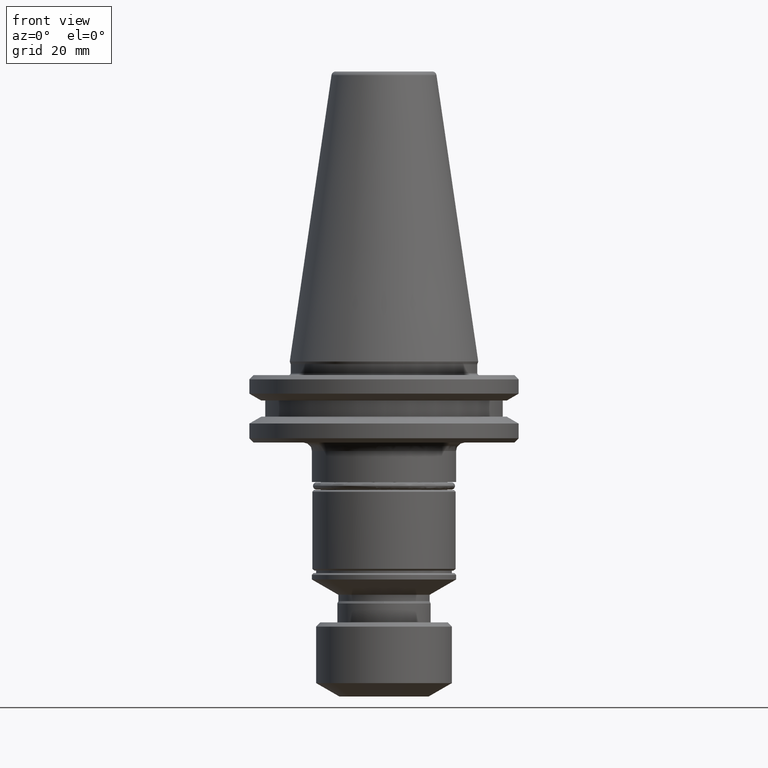
[diagram: clean part render]
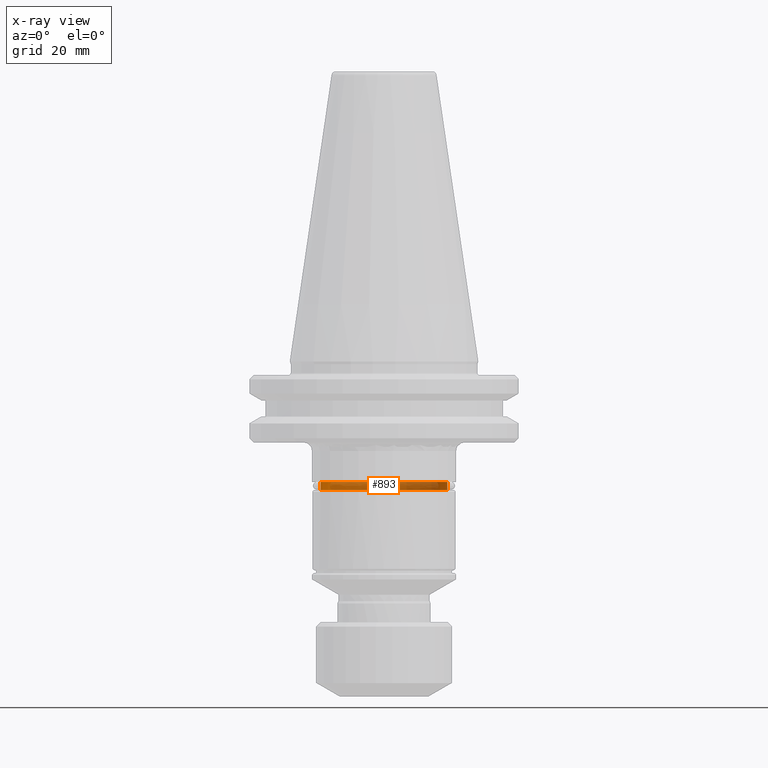
[diagram: x-ray — body ghosted, one internal face saturated and labeled with its STEP entity id]
A machine part, front view, then the same camera in x-ray: the body is ghosted and one INTERNAL B-rep face — a face not visible from any outside direction — is saturated and labeled: STEP entity #893.
In plain terms, the highlighted cylindrical surface (partial cylindrical patch) has radius 14.95 mm, axis along (0, 0, 1).
Its self-contained STEP definition (entity closure, byte-faithful):
#1 = CARTESIAN_POINT ( 'NONE',  ( -14.94999999999999600, 1.830846964725292900E-015, -28.40000000000001300 ) ) ;
#27 = DIRECTION ( 'NONE',  ( 0.0000000000000000000, 0.0000000000000000000, 1.000000000000000000 ) ) ;
#48 = VECTOR ( 'NONE', #943, 1000.000000000000000 ) ;
#92 = AXIS2_PLACEMENT_3D ( 'NONE', #1427, #1544, #1143 ) ;
#181 = FACE_OUTER_BOUND ( 'NONE', #1301, .T. ) ;
#405 = CARTESIAN_POINT ( 'NONE',  ( 14.94999999999999600, 0.0000000000000000000, -30.30000000000001100 ) ) ;
#457 = EDGE_CURVE ( 'NONE', #1166, #849, #482, .T. ) ;
#482 = LINE ( 'NONE', #1144, #1320 ) ;
#506 = LINE ( 'NONE', #957, #48 ) ;
#526 = CARTESIAN_POINT ( 'NONE',  ( 0.0000000000000000000, 0.0000000000000000000, -30.30000000000001100 ) ) ;
#629 = EDGE_CURVE ( 'NONE', #1719, #1695, #506, .T. ) ;
#680 = CARTESIAN_POINT ( 'NONE',  ( 0.0000000000000000000, 0.0000000000000000000, 0.0000000000000000000 ) ) ;
#682 = DIRECTION ( 'NONE',  ( 1.000000000000000000, 0.0000000000000000000, 0.0000000000000000000 ) ) ;
#720 = DIRECTION ( 'NONE',  ( 0.0000000000000000000, 0.0000000000000000000, 1.000000000000000000 ) ) ;
#748 = AXIS2_PLACEMENT_3D ( 'NONE', #680, #720, #682 ) ;
#765 = CARTESIAN_POINT ( 'NONE',  ( 14.94999999999999600, 0.0000000000000000000, -28.40000000000001300 ) ) ;
#776 = CARTESIAN_POINT ( 'NONE',  ( -14.94999999999999600, 1.830846964725292900E-015, -30.30000000000001100 ) ) ;
#810 = ORIENTED_EDGE ( 'NONE', *, *, #2046, .F. ) ;
#849 = VERTEX_POINT ( 'NONE', #765 ) ;
#858 = AXIS2_PLACEMENT_3D ( 'NONE', #526, #27, #1793 ) ;
#893 = ADVANCED_FACE ( 'NONE', ( #181 ), #992, .T. ) ;
#943 = DIRECTION ( 'NONE',  ( 0.0000000000000000000, 0.0000000000000000000, 1.000000000000000000 ) ) ;
#957 = CARTESIAN_POINT ( 'NONE',  ( -14.94999999999999600, 1.830846964725292900E-015, 0.0000000000000000000 ) ) ;
#992 = CYLINDRICAL_SURFACE ( 'NONE', #748, 14.94999999999999600 ) ;
#1143 = DIRECTION ( 'NONE',  ( 1.000000000000000000, 0.0000000000000000000, 0.0000000000000000000 ) ) ;
#1144 = CARTESIAN_POINT ( 'NONE',  ( 14.94999999999999600, 0.0000000000000000000, 0.0000000000000000000 ) ) ;
#1166 = VERTEX_POINT ( 'NONE', #405 ) ;
#1187 = DIRECTION ( 'NONE',  ( 0.0000000000000000000, 0.0000000000000000000, 1.000000000000000000 ) ) ;
#1219 = CIRCLE ( 'NONE', #858, 14.94999999999999600 ) ;
#1301 = EDGE_LOOP ( 'NONE', ( #2057, #1764, #810, #1910 ) ) ;
#1320 = VECTOR ( 'NONE', #1187, 1000.000000000000000 ) ;
#1427 = CARTESIAN_POINT ( 'NONE',  ( 0.0000000000000000000, 0.0000000000000000000, -28.40000000000001300 ) ) ;
#1544 = DIRECTION ( 'NONE',  ( 0.0000000000000000000, 0.0000000000000000000, 1.000000000000000000 ) ) ;
#1695 = VERTEX_POINT ( 'NONE', #1 ) ;
#1712 = CIRCLE ( 'NONE', #92, 14.94999999999999600 ) ;
#1719 = VERTEX_POINT ( 'NONE', #776 ) ;
#1764 = ORIENTED_EDGE ( 'NONE', *, *, #629, .T. ) ;
#1793 = DIRECTION ( 'NONE',  ( 1.000000000000000000, 0.0000000000000000000, 0.0000000000000000000 ) ) ;
#1860 = EDGE_CURVE ( 'NONE', #1166, #1719, #1219, .T. ) ;
#1910 = ORIENTED_EDGE ( 'NONE', *, *, #457, .F. ) ;
#2046 = EDGE_CURVE ( 'NONE', #849, #1695, #1712, .T. ) ;
#2057 = ORIENTED_EDGE ( 'NONE', *, *, #1860, .T. ) ;